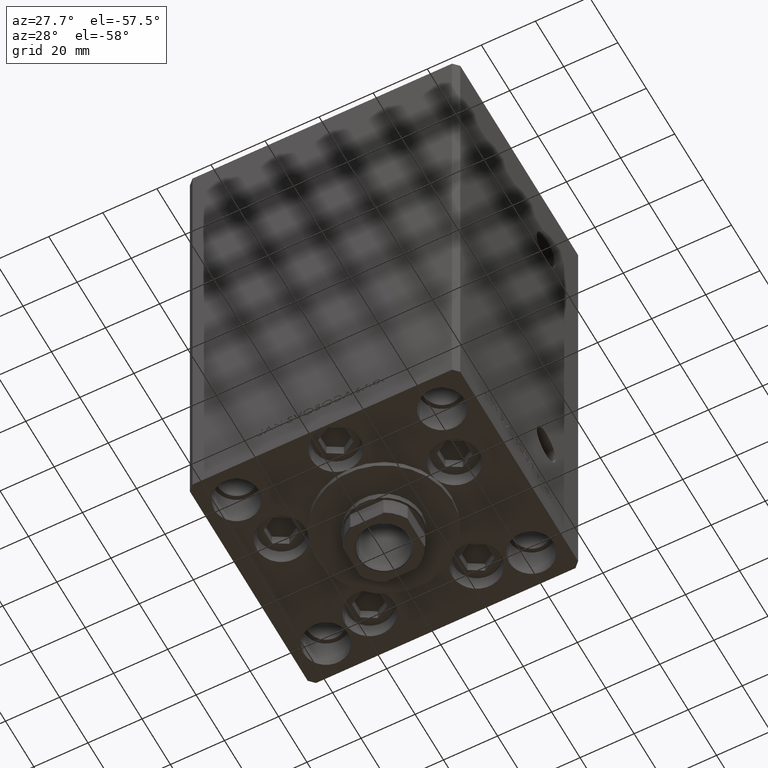
[diagram: clean part render]
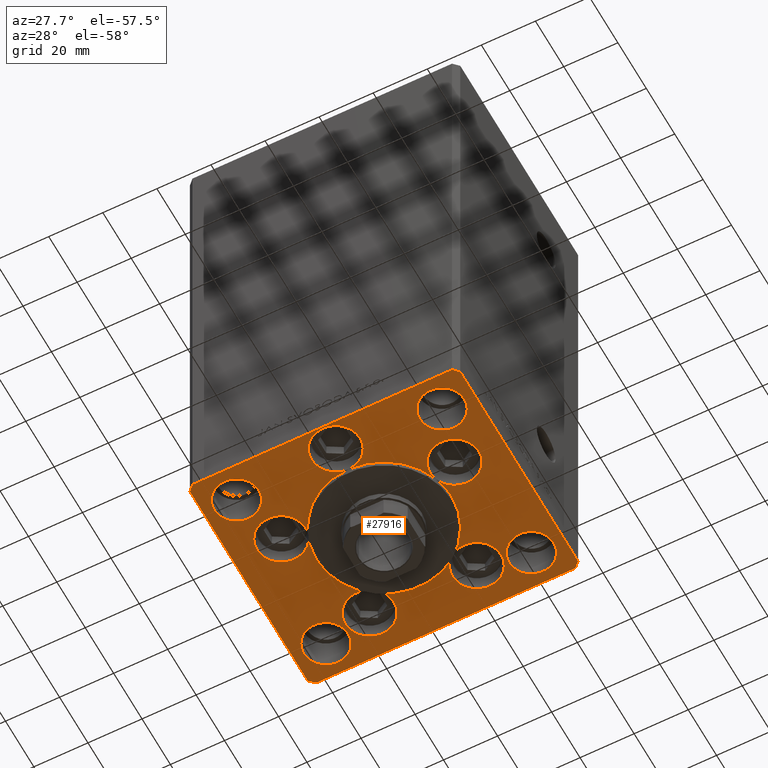
[diagram: same view with one face highlighted and labeled with its STEP entity id]
A machine part, auxiliary view. The second image highlights one B-rep face of the part: STEP entity #27916.
In plain terms, the highlighted planar face has unit normal (0, 0, -1).
Its self-contained STEP definition (entity closure, byte-faithful):
#75 = CARTESIAN_POINT ( 'NONE',  ( 47.99999999999999289, 43.50000000000000000, 0.000000000000000000 ) ) ;
#104 = ORIENTED_EDGE ( 'NONE', *, *, #5008, .F. ) ;
#226 = VERTEX_POINT ( 'NONE', #43201 ) ;
#364 = DIRECTION ( 'NONE',  ( 0.000000000000000000, 0.000000000000000000, 1.000000000000000000 ) ) ;
#482 = ORIENTED_EDGE ( 'NONE', *, *, #17138, .T. ) ;
#884 = EDGE_CURVE ( 'NONE', #41532, #47914, #15008, .T. ) ;
#889 = CARTESIAN_POINT ( 'NONE',  ( 0.000000000000000000, -6.938893903907228378E-15, 0.000000000000000000 ) ) ;
#938 = DIRECTION ( 'NONE',  ( -0.7071067811865512365, 0.7071067811865439090, 0.000000000000000000 ) ) ;
#1061 = EDGE_CURVE ( 'NONE', #16385, #7352, #23842, .T. ) ;
#1302 = CARTESIAN_POINT ( 'NONE',  ( 9.000000000000000000, -34.00000000000000000, 0.000000000000000000 ) ) ;
#1760 = CARTESIAN_POINT ( 'NONE',  ( 0.000000000000000000, -6.938893903907228378E-15, 0.000000000000000000 ) ) ;
#2022 = EDGE_LOOP ( 'NONE', ( #2719, #27828 ) ) ;
#2189 = DIRECTION ( 'NONE',  ( 0.000000000000000000, 0.000000000000000000, 1.000000000000000000 ) ) ;
#2458 = EDGE_CURVE ( 'NONE', #13599, #4754, #35096, .T. ) ;
#2632 = CIRCLE ( 'NONE', #6653, 25.00000000000000000 ) ;
#2704 = DIRECTION ( 'NONE',  ( 1.000000000000000000, 0.000000000000000000, 0.000000000000000000 ) ) ;
#2719 = ORIENTED_EDGE ( 'NONE', *, *, #10241, .F. ) ;
#2978 = EDGE_CURVE ( 'NONE', #17115, #39366, #39244, .T. ) ;
#3272 = EDGE_CURVE ( 'NONE', #39171, #33887, #7455, .T. ) ;
#3369 = EDGE_LOOP ( 'NONE', ( #3981, #37322 ) ) ;
#3731 = LINE ( 'NONE', #19784, #46924 ) ;
#3892 = DIRECTION ( 'NONE',  ( 1.000000000000000000, 0.000000000000000000, 0.000000000000000000 ) ) ;
#3981 = ORIENTED_EDGE ( 'NONE', *, *, #10288, .F. ) ;
#4004 = EDGE_CURVE ( 'NONE', #8108, #41532, #33571, .T. ) ;
#4022 = AXIS2_PLACEMENT_3D ( 'NONE', #25175, #48470, #14104 ) ;
#4073 = CARTESIAN_POINT ( 'NONE',  ( 48.00000000000000711, -43.49999999999992184, 0.000000000000000000 ) ) ;
#4263 = CARTESIAN_POINT ( 'NONE',  ( -38.00000000000000711, -31.50000000000000711, 0.000000000000000000 ) ) ;
#4321 = CIRCLE ( 'NONE', #18761, 8.250000000000000000 ) ;
#4332 = DIRECTION ( 'NONE',  ( -0.7071067811865536790, -0.7071067811865414665, 0.000000000000000000 ) ) ;
#4715 = FACE_BOUND ( 'NONE', #2022, .T. ) ;
#4754 = VERTEX_POINT ( 'NONE', #42868 ) ;
#5008 = EDGE_CURVE ( 'NONE', #6382, #8108, #48324, .T. ) ;
#5153 = AXIS2_PLACEMENT_3D ( 'NONE', #41815, #37815, #18509 ) ;
#5192 = CARTESIAN_POINT ( 'NONE',  ( -29.75000000000000000, 31.50000000000000000, 0.000000000000000000 ) ) ;
#5275 = ORIENTED_EDGE ( 'NONE', *, *, #48792, .F. ) ;
#5762 = DIRECTION ( 'NONE',  ( 1.000000000000000000, 0.000000000000000000, 0.000000000000000000 ) ) ;
#5980 = DIRECTION ( 'NONE',  ( 0.000000000000000000, 0.000000000000000000, 1.000000000000000000 ) ) ;
#6005 = AXIS2_PLACEMENT_3D ( 'NONE', #18359, #43962, #34392 ) ;
#6113 = CIRCLE ( 'NONE', #28575, 9.000000000000001776 ) ;
#6152 = DIRECTION ( 'NONE',  ( 0.000000000000000000, 0.000000000000000000, 1.000000000000000000 ) ) ;
#6274 = EDGE_CURVE ( 'NONE', #4754, #13599, #21852, .T. ) ;
#6315 = AXIS2_PLACEMENT_3D ( 'NONE', #16943, #36256, #10155 ) ;
#6338 = CARTESIAN_POINT ( 'NONE',  ( 38.00000000000000711, -31.50000000000000711, 0.000000000000000000 ) ) ;
#6382 = VERTEX_POINT ( 'NONE', #39427 ) ;
#6530 = EDGE_CURVE ( 'NONE', #6382, #9636, #9911, .T. ) ;
#6650 = AXIS2_PLACEMENT_3D ( 'NONE', #4263, #23597, #8034 ) ;
#6653 = AXIS2_PLACEMENT_3D ( 'NONE', #46762, #12408, #3892 ) ;
#6726 = EDGE_CURVE ( 'NONE', #7352, #39366, #2632, .T. ) ;
#7009 = CIRCLE ( 'NONE', #36615, 25.00000000000000000 ) ;
#7352 = VERTEX_POINT ( 'NONE', #17288 ) ;
#7455 = LINE ( 'NONE', #42298, #22437 ) ;
#7627 = ORIENTED_EDGE ( 'NONE', *, *, #10457, .F. ) ;
#7821 = AXIS2_PLACEMENT_3D ( 'NONE', #21206, #48022, #36487 ) ;
#8034 = DIRECTION ( 'NONE',  ( 1.000000000000000000, 0.000000000000000000, 0.000000000000000000 ) ) ;
#8108 = VERTEX_POINT ( 'NONE', #27385 ) ;
#8477 = FACE_BOUND ( 'NONE', #3369, .T. ) ;
#8715 = VERTEX_POINT ( 'NONE', #15217 ) ;
#8793 = AXIS2_PLACEMENT_3D ( 'NONE', #24541, #20524, #16004 ) ;
#8951 = VERTEX_POINT ( 'NONE', #17190 ) ;
#9404 = VECTOR ( 'NONE', #4332, 1000.000000000000000 ) ;
#9502 = DIRECTION ( 'NONE',  ( 1.000000000000000000, 0.000000000000000000, 0.000000000000000000 ) ) ;
#9543 = CIRCLE ( 'NONE', #43990, 8.250000000000000000 ) ;
#9636 = VERTEX_POINT ( 'NONE', #35025 ) ;
#9911 = CIRCLE ( 'NONE', #42624, 9.000000000000001776 ) ;
#9999 = EDGE_LOOP ( 'NONE', ( #25031, #12908 ) ) ;
#10155 = DIRECTION ( 'NONE',  ( 1.000000000000000000, 0.000000000000000000, 0.000000000000000000 ) ) ;
#10241 = EDGE_CURVE ( 'NONE', #8951, #226, #48395, .T. ) ;
#10274 = EDGE_LOOP ( 'NONE', ( #32628, #38568 ) ) ;
#10288 = EDGE_CURVE ( 'NONE', #12146, #10616, #4321, .T. ) ;
#10325 = VERTEX_POINT ( 'NONE', #37317 ) ;
#10457 = EDGE_CURVE ( 'NONE', #15001, #10325, #45180, .T. ) ;
#10616 = VERTEX_POINT ( 'NONE', #35032 ) ;
#10732 = EDGE_CURVE ( 'NONE', #32458, #44429, #28768, .T. ) ;
#10828 = CARTESIAN_POINT ( 'NONE',  ( -38.00000000000000000, 31.50000000000000000, 0.000000000000000000 ) ) ;
#11277 = CARTESIAN_POINT ( 'NONE',  ( -32.05550741379015989, -11.33333333333332860, 0.000000000000000000 ) ) ;
#11844 = LINE ( 'NONE', #4073, #41413 ) ;
#12146 = VERTEX_POINT ( 'NONE', #13541 ) ;
#12266 = CIRCLE ( 'NONE', #24324, 9.000000000000000000 ) ;
#12292 = ORIENTED_EDGE ( 'NONE', *, *, #21473, .T. ) ;
#12407 = CIRCLE ( 'NONE', #25242, 9.000000000000000000 ) ;
#12408 = DIRECTION ( 'NONE',  ( 0.000000000000000000, 0.000000000000000000, 1.000000000000000000 ) ) ;
#12473 = LINE ( 'NONE', #24034, #43668 ) ;
#12552 = AXIS2_PLACEMENT_3D ( 'NONE', #40517, #33735, #45272 ) ;
#12633 = CIRCLE ( 'NONE', #46162, 9.000000000000001776 ) ;
#12669 = EDGE_CURVE ( 'NONE', #46390, #7352, #21240, .T. ) ;
#12740 = CARTESIAN_POINT ( 'NONE',  ( -23.05550741379015633, -11.33333333333332860, 0.000000000000000000 ) ) ;
#12794 = CARTESIAN_POINT ( 'NONE',  ( -50.00000000000000000, -41.50000000000004263, 0.000000000000000000 ) ) ;
#12908 = ORIENTED_EDGE ( 'NONE', *, *, #2458, .F. ) ;
#13541 = CARTESIAN_POINT ( 'NONE',  ( 46.25000000000000000, 31.50000000000000000, 0.000000000000000000 ) ) ;
#13599 = VERTEX_POINT ( 'NONE', #31739 ) ;
#13688 = VERTEX_POINT ( 'NONE', #5192 ) ;
#14051 = DIRECTION ( 'NONE',  ( 1.000000000000000000, 0.000000000000000000, 0.000000000000000000 ) ) ;
#14104 = DIRECTION ( 'NONE',  ( 1.000000000000000000, 0.000000000000000000, 0.000000000000000000 ) ) ;
#14105 = DIRECTION ( 'NONE',  ( 0.000000000000000000, 0.000000000000000000, 1.000000000000000000 ) ) ;
#14335 = CIRCLE ( 'NONE', #6315, 8.999999999999998224 ) ;
#14650 = VERTEX_POINT ( 'NONE', #48760 ) ;
#14744 = VERTEX_POINT ( 'NONE', #35188 ) ;
#14946 = ORIENTED_EDGE ( 'NONE', *, *, #21578, .F. ) ;
#15001 = VERTEX_POINT ( 'NONE', #18594 ) ;
#15008 = CIRCLE ( 'NONE', #35054, 25.00000000000000000 ) ;
#15058 = DIRECTION ( 'NONE',  ( 1.000000000000000000, 0.000000000000000000, 0.000000000000000000 ) ) ;
#15142 = EDGE_LOOP ( 'NONE', ( #29163, #27894, #482, #42613, #23931, #27339, #12292, #26647 ) ) ;
#15217 = CARTESIAN_POINT ( 'NONE',  ( 47.99999999999999289, 43.50000000000000000, 0.000000000000000000 ) ) ;
#15361 = CARTESIAN_POINT ( 'NONE',  ( 38.00000000000000711, -31.50000000000000711, 0.000000000000000000 ) ) ;
#15820 = EDGE_CURVE ( 'NONE', #13688, #41670, #32577, .T. ) ;
#15978 = DIRECTION ( 'NONE',  ( 0.000000000000000000, 0.000000000000000000, 1.000000000000000000 ) ) ;
#16004 = DIRECTION ( 'NONE',  ( 1.000000000000000000, 0.000000000000000000, 0.000000000000000000 ) ) ;
#16186 = DIRECTION ( 'NONE',  ( 0.000000000000000000, 0.000000000000000000, 1.000000000000000000 ) ) ;
#16252 = FACE_BOUND ( 'NONE', #35153, .T. ) ;
#16338 = ORIENTED_EDGE ( 'NONE', *, *, #48624, .F. ) ;
#16360 = AXIS2_PLACEMENT_3D ( 'NONE', #32086, #23149, #38432 ) ;
#16385 = VERTEX_POINT ( 'NONE', #42669 ) ;
#16429 = CARTESIAN_POINT ( 'NONE',  ( -28.82068048781374969, 27.62499999999998934, 0.000000000000000000 ) ) ;
#16497 = FACE_OUTER_BOUND ( 'NONE', #15142, .T. ) ;
#16866 = DIRECTION ( 'NONE',  ( 0.000000000000000000, 0.000000000000000000, 1.000000000000000000 ) ) ;
#16943 = CARTESIAN_POINT ( 'NONE',  ( 19.82068048781374969, 27.62499999999998934, 0.000000000000000000 ) ) ;
#17115 = VERTEX_POINT ( 'NONE', #1302 ) ;
#17138 = EDGE_CURVE ( 'NONE', #33887, #22483, #11844, .T. ) ;
#17190 = CARTESIAN_POINT ( 'NONE',  ( -29.75000000000000711, -31.50000000000000711, 0.000000000000000000 ) ) ;
#17283 = CARTESIAN_POINT ( 'NONE',  ( 14.57402977045128623, 20.31249999999998579, 0.000000000000000000 ) ) ;
#17288 = CARTESIAN_POINT ( 'NONE',  ( -23.57022603955158502, -8.333333333333332149, 0.000000000000000000 ) ) ;
#17322 = CARTESIAN_POINT ( 'NONE',  ( 48.00000000000000711, -43.49999999999992184, 0.000000000000000000 ) ) ;
#17520 = EDGE_CURVE ( 'NONE', #22483, #23120, #27109, .T. ) ;
#17543 = CARTESIAN_POINT ( 'NONE',  ( -50.00000000000000711, 41.49999999999999289, 0.000000000000000000 ) ) ;
#17912 = DIRECTION ( 'NONE',  ( 1.000000000000000000, 0.000000000000000000, 0.000000000000000000 ) ) ;
#18137 = CIRCLE ( 'NONE', #30956, 9.000000000000000000 ) ;
#18179 = DIRECTION ( 'NONE',  ( 1.000000000000000000, 0.000000000000000000, 0.000000000000000000 ) ) ;
#18359 = CARTESIAN_POINT ( 'NONE',  ( -32.05550741379015989, -11.33333333333332860, 0.000000000000000000 ) ) ;
#18509 = DIRECTION ( 'NONE',  ( 1.000000000000000000, 0.000000000000000000, 0.000000000000000000 ) ) ;
#18547 = ORIENTED_EDGE ( 'NONE', *, *, #36570, .F. ) ;
#18594 = CARTESIAN_POINT ( 'NONE',  ( 28.82068048781374969, 27.62499999999998934, 0.000000000000000000 ) ) ;
#18605 = DIRECTION ( 'NONE',  ( 1.000000000000000000, 0.000000000000000000, 0.000000000000000000 ) ) ;
#18644 = ORIENTED_EDGE ( 'NONE', *, *, #45158, .F. ) ;
#18682 = CIRCLE ( 'NONE', #46707, 25.00000000000000000 ) ;
#18761 = AXIS2_PLACEMENT_3D ( 'NONE', #21551, #25309, #2704 ) ;
#18837 = VERTEX_POINT ( 'NONE', #45754 ) ;
#18892 = LINE ( 'NONE', #75, #20632 ) ;
#19295 = EDGE_CURVE ( 'NONE', #9636, #14650, #12633, .T. ) ;
#19318 = DIRECTION ( 'NONE',  ( 0.000000000000000000, 0.000000000000000000, 1.000000000000000000 ) ) ;
#19375 = DIRECTION ( 'NONE',  ( 0.7071067811865474617, 0.7071067811865474617, 0.000000000000000000 ) ) ;
#19387 = CARTESIAN_POINT ( 'NONE',  ( -48.00000000000000000, 43.49999999999997158, 0.000000000000000000 ) ) ;
#19667 = CARTESIAN_POINT ( 'NONE',  ( 32.05550741379015989, -11.33333333333332860, 0.000000000000000000 ) ) ;
#19777 = PLANE ( 'NONE',  #8793 ) ;
#19784 = CARTESIAN_POINT ( 'NONE',  ( -50.00000000000000000, -41.50000000000004263, 0.000000000000000000 ) ) ;
#20395 = CARTESIAN_POINT ( 'NONE',  ( 0.000000000000000000, -6.938893903907228378E-15, 0.000000000000000000 ) ) ;
#20524 = DIRECTION ( 'NONE',  ( -0.000000000000000000, 0.000000000000000000, 1.000000000000000000 ) ) ;
#20632 = VECTOR ( 'NONE', #35175, 1000.000000000000000 ) ;
#20725 = EDGE_CURVE ( 'NONE', #8715, #47531, #18892, .T. ) ;
#20819 = AXIS2_PLACEMENT_3D ( 'NONE', #49409, #42357, #26844 ) ;
#21134 = DIRECTION ( 'NONE',  ( 1.000000000000000000, 0.000000000000000000, 0.000000000000000000 ) ) ;
#21206 = CARTESIAN_POINT ( 'NONE',  ( 0.000000000000000000, -6.938893903907228378E-15, 0.000000000000000000 ) ) ;
#21240 = CIRCLE ( 'NONE', #6005, 9.000000000000001776 ) ;
#21473 = EDGE_CURVE ( 'NONE', #47531, #32458, #31176, .T. ) ;
#21551 = CARTESIAN_POINT ( 'NONE',  ( 38.00000000000000000, 31.50000000000000000, 0.000000000000000000 ) ) ;
#21578 = EDGE_CURVE ( 'NONE', #47914, #16385, #7009, .T. ) ;
#21852 = CIRCLE ( 'NONE', #28264, 8.249999999999992895 ) ;
#22437 = VECTOR ( 'NONE', #34045, 1000.000000000000000 ) ;
#22483 = VERTEX_POINT ( 'NONE', #44639 ) ;
#22680 = CIRCLE ( 'NONE', #6650, 8.250000000000000000 ) ;
#22759 = VERTEX_POINT ( 'NONE', #35077 ) ;
#22779 = DIRECTION ( 'NONE',  ( 0.000000000000000000, 0.000000000000000000, 1.000000000000000000 ) ) ;
#22952 = AXIS2_PLACEMENT_3D ( 'NONE', #23260, #22779, #30302 ) ;
#23120 = VERTEX_POINT ( 'NONE', #33477 ) ;
#23149 = DIRECTION ( 'NONE',  ( 0.000000000000000000, 0.000000000000000000, 1.000000000000000000 ) ) ;
#23197 = AXIS2_PLACEMENT_3D ( 'NONE', #11277, #48669, #14051 ) ;
#23260 = CARTESIAN_POINT ( 'NONE',  ( -19.82068048781374969, 27.62499999999998934, 0.000000000000000000 ) ) ;
#23323 = CARTESIAN_POINT ( 'NONE',  ( 38.00000000000000000, 31.50000000000000000, 0.000000000000000000 ) ) ;
#23597 = DIRECTION ( 'NONE',  ( 0.000000000000000000, 0.000000000000000000, 1.000000000000000000 ) ) ;
#23842 = CIRCLE ( 'NONE', #7821, 25.00000000000000000 ) ;
#23931 = ORIENTED_EDGE ( 'NONE', *, *, #44816, .T. ) ;
#24034 = CARTESIAN_POINT ( 'NONE',  ( 50.00000000000000000, 41.50000000000000711, 0.000000000000000000 ) ) ;
#24158 = ORIENTED_EDGE ( 'NONE', *, *, #33665, .F. ) ;
#24324 = AXIS2_PLACEMENT_3D ( 'NONE', #40426, #16866, #32166 ) ;
#24444 = DIRECTION ( 'NONE',  ( 0.000000000000000000, 0.000000000000000000, 1.000000000000000000 ) ) ;
#24541 = CARTESIAN_POINT ( 'NONE',  ( 0.000000000000000000, 0.000000000000000000, 0.000000000000000000 ) ) ;
#24694 = DIRECTION ( 'NONE',  ( 1.000000000000000000, 0.000000000000000000, 0.000000000000000000 ) ) ;
#25031 = ORIENTED_EDGE ( 'NONE', *, *, #6274, .F. ) ;
#25115 = AXIS2_PLACEMENT_3D ( 'NONE', #45832, #15978, #26553 ) ;
#25175 = CARTESIAN_POINT ( 'NONE',  ( -38.00000000000000000, 31.50000000000000000, 0.000000000000000000 ) ) ;
#25242 = AXIS2_PLACEMENT_3D ( 'NONE', #39008, #46516, #47273 ) ;
#25261 = EDGE_CURVE ( 'NONE', #10325, #41532, #14335, .T. ) ;
#25309 = DIRECTION ( 'NONE',  ( 0.000000000000000000, 0.000000000000000000, 1.000000000000000000 ) ) ;
#25406 = DIRECTION ( 'NONE',  ( 0.000000000000000000, 0.000000000000000000, 1.000000000000000000 ) ) ;
#25408 = ORIENTED_EDGE ( 'NONE', *, *, #884, .F. ) ;
#25486 = AXIS2_PLACEMENT_3D ( 'NONE', #6338, #14105, #49224 ) ;
#25732 = CARTESIAN_POINT ( 'NONE',  ( -14.57402977045128978, 20.31249999999999289, 0.000000000000000000 ) ) ;
#26071 = ORIENTED_EDGE ( 'NONE', *, *, #36381, .F. ) ;
#26102 = EDGE_CURVE ( 'NONE', #10616, #12146, #9543, .T. ) ;
#26321 = CARTESIAN_POINT ( 'NONE',  ( -46.25000000000000000, 31.50000000000000000, 0.000000000000000000 ) ) ;
#26553 = DIRECTION ( 'NONE',  ( 1.000000000000000000, 0.000000000000000000, 0.000000000000000000 ) ) ;
#26647 = ORIENTED_EDGE ( 'NONE', *, *, #10732, .T. ) ;
#26729 = EDGE_CURVE ( 'NONE', #14744, #46390, #30431, .T. ) ;
#26844 = DIRECTION ( 'NONE',  ( 1.000000000000000000, 0.000000000000000000, 0.000000000000000000 ) ) ;
#27109 = LINE ( 'NONE', #34845, #42197 ) ;
#27339 = ORIENTED_EDGE ( 'NONE', *, *, #20725, .T. ) ;
#27385 = CARTESIAN_POINT ( 'NONE',  ( 25.00000000000000000, -3.877276906038844941E-15, 0.000000000000000000 ) ) ;
#27828 = ORIENTED_EDGE ( 'NONE', *, *, #35652, .F. ) ;
#27894 = ORIENTED_EDGE ( 'NONE', *, *, #3272, .T. ) ;
#27916 = ADVANCED_FACE ( 'NONE', ( #16252, #8477, #47346, #4715, #43580, #16497 ), #19777, .T. ) ;
#28225 = CIRCLE ( 'NONE', #33792, 8.999999999999998224 ) ;
#28264 = AXIS2_PLACEMENT_3D ( 'NONE', #15361, #34911, #42196 ) ;
#28575 = AXIS2_PLACEMENT_3D ( 'NONE', #19667, #24444, #24694 ) ;
#28768 = LINE ( 'NONE', #44042, #36372 ) ;
#29035 = CARTESIAN_POINT ( 'NONE',  ( -32.05550741379015989, -11.33333333333332860, 0.000000000000000000 ) ) ;
#29163 = ORIENTED_EDGE ( 'NONE', *, *, #46929, .T. ) ;
#29184 = CARTESIAN_POINT ( 'NONE',  ( 19.82068048781374969, 27.62499999999998934, 0.000000000000000000 ) ) ;
#29258 = EDGE_CURVE ( 'NONE', #41670, #13688, #42469, .T. ) ;
#30302 = DIRECTION ( 'NONE',  ( 1.000000000000000000, 0.000000000000000000, 0.000000000000000000 ) ) ;
#30431 = CIRCLE ( 'NONE', #23197, 9.000000000000001776 ) ;
#30798 = ORIENTED_EDGE ( 'NONE', *, *, #26729, .F. ) ;
#30956 = AXIS2_PLACEMENT_3D ( 'NONE', #36505, #6152, #18179 ) ;
#31065 = ORIENTED_EDGE ( 'NONE', *, *, #46274, .F. ) ;
#31176 = LINE ( 'NONE', #19387, #9404 ) ;
#31391 = CARTESIAN_POINT ( 'NONE',  ( 0.000000000000000000, -25.00000000000000000, 0.000000000000000000 ) ) ;
#31685 = AXIS2_PLACEMENT_3D ( 'NONE', #29035, #2189, #48081 ) ;
#31739 = CARTESIAN_POINT ( 'NONE',  ( 29.75000000000001066, -31.50000000000000711, 0.000000000000000000 ) ) ;
#32086 = CARTESIAN_POINT ( 'NONE',  ( -38.00000000000000711, -31.50000000000000711, 0.000000000000000000 ) ) ;
#32166 = DIRECTION ( 'NONE',  ( 1.000000000000000000, 0.000000000000000000, 0.000000000000000000 ) ) ;
#32458 = VERTEX_POINT ( 'NONE', #17543 ) ;
#32577 = CIRCLE ( 'NONE', #41381, 8.250000000000000000 ) ;
#32628 = ORIENTED_EDGE ( 'NONE', *, *, #15820, .F. ) ;
#33128 = ORIENTED_EDGE ( 'NONE', *, *, #4004, .F. ) ;
#33477 = CARTESIAN_POINT ( 'NONE',  ( 50.00000000000000000, 41.50000000000000711, 0.000000000000000000 ) ) ;
#33571 = CIRCLE ( 'NONE', #39991, 25.00000000000000000 ) ;
#33665 = EDGE_CURVE ( 'NONE', #41532, #15001, #28225, .T. ) ;
#33735 = DIRECTION ( 'NONE',  ( 0.000000000000000000, 0.000000000000000000, 1.000000000000000000 ) ) ;
#33792 = AXIS2_PLACEMENT_3D ( 'NONE', #29184, #44467, #40706 ) ;
#33873 = CARTESIAN_POINT ( 'NONE',  ( 32.05550741379015989, -11.33333333333332860, 0.000000000000000000 ) ) ;
#33887 = VERTEX_POINT ( 'NONE', #17322 ) ;
#34045 = DIRECTION ( 'NONE',  ( 1.000000000000000000, 1.156482317317871331E-15, 0.000000000000000000 ) ) ;
#34392 = DIRECTION ( 'NONE',  ( 1.000000000000000000, 0.000000000000000000, 0.000000000000000000 ) ) ;
#34845 = CARTESIAN_POINT ( 'NONE',  ( 50.00000000000000000, -41.49999999999992895, 0.000000000000000000 ) ) ;
#34911 = DIRECTION ( 'NONE',  ( 0.000000000000000000, 0.000000000000000000, 1.000000000000000000 ) ) ;
#35025 = CARTESIAN_POINT ( 'NONE',  ( 23.05550741379015633, -11.33333333333332682, 0.000000000000000000 ) ) ;
#35032 = CARTESIAN_POINT ( 'NONE',  ( 29.74999999999999645, 31.50000000000000000, 0.000000000000000000 ) ) ;
#35054 = AXIS2_PLACEMENT_3D ( 'NONE', #889, #16186, #17912 ) ;
#35071 = DIRECTION ( 'NONE',  ( 0.7071067811865487940, -0.7071067811865463515, 0.000000000000000000 ) ) ;
#35077 = CARTESIAN_POINT ( 'NONE',  ( -10.82068048781375147, 27.62499999999998934, 0.000000000000000000 ) ) ;
#35096 = CIRCLE ( 'NONE', #25486, 8.249999999999992895 ) ;
#35153 = EDGE_LOOP ( 'NONE', ( #25408, #40679, #7627, #24158, #33128, #104, #46327, #48397, #47635, #18547, #40939, #18644, #45299, #37345, #37708, #30798, #31065, #38574, #14946, #16338, #5275, #26071 ) ) ;
#35175 = DIRECTION ( 'NONE',  ( -1.000000000000000000, -2.891205793294678326E-16, 0.000000000000000000 ) ) ;
#35188 = CARTESIAN_POINT ( 'NONE',  ( -41.05550741379015989, -11.33333333333332682, 0.000000000000000000 ) ) ;
#35454 = DIRECTION ( 'NONE',  ( 8.360113137237620037E-17, -1.000000000000000000, 0.000000000000000000 ) ) ;
#35652 = EDGE_CURVE ( 'NONE', #226, #8951, #22680, .T. ) ;
#36256 = DIRECTION ( 'NONE',  ( 0.000000000000000000, 0.000000000000000000, 1.000000000000000000 ) ) ;
#36372 = VECTOR ( 'NONE', #35454, 1000.000000000000000 ) ;
#36381 = EDGE_CURVE ( 'NONE', #47914, #22759, #12266, .T. ) ;
#36487 = DIRECTION ( 'NONE',  ( 1.000000000000000000, 0.000000000000000000, 0.000000000000000000 ) ) ;
#36505 = CARTESIAN_POINT ( 'NONE',  ( 0.000000000000000000, -34.00000000000000000, 0.000000000000000000 ) ) ;
#36570 = EDGE_CURVE ( 'NONE', #39366, #6382, #18682, .T. ) ;
#36615 = AXIS2_PLACEMENT_3D ( 'NONE', #20395, #40179, #21134 ) ;
#37317 = CARTESIAN_POINT ( 'NONE',  ( 10.82068048781375147, 27.62499999999998934, 0.000000000000000000 ) ) ;
#37322 = ORIENTED_EDGE ( 'NONE', *, *, #26102, .F. ) ;
#37345 = ORIENTED_EDGE ( 'NONE', *, *, #6726, .F. ) ;
#37708 = ORIENTED_EDGE ( 'NONE', *, *, #12669, .F. ) ;
#37815 = DIRECTION ( 'NONE',  ( 0.000000000000000000, 0.000000000000000000, 1.000000000000000000 ) ) ;
#38187 = CIRCLE ( 'NONE', #12552, 9.000000000000000000 ) ;
#38432 = DIRECTION ( 'NONE',  ( 1.000000000000000000, 0.000000000000000000, 0.000000000000000000 ) ) ;
#38568 = ORIENTED_EDGE ( 'NONE', *, *, #29258, .F. ) ;
#38574 = ORIENTED_EDGE ( 'NONE', *, *, #1061, .F. ) ;
#38604 = DIRECTION ( 'NONE',  ( 1.000000000000000000, 0.000000000000000000, 0.000000000000000000 ) ) ;
#38738 = DIRECTION ( 'NONE',  ( 1.000000000000000000, 0.000000000000000000, 0.000000000000000000 ) ) ;
#39008 = CARTESIAN_POINT ( 'NONE',  ( 0.000000000000000000, -34.00000000000000000, 0.000000000000000000 ) ) ;
#39171 = VERTEX_POINT ( 'NONE', #39776 ) ;
#39244 = CIRCLE ( 'NONE', #20819, 9.000000000000000000 ) ;
#39366 = VERTEX_POINT ( 'NONE', #31391 ) ;
#39427 = CARTESIAN_POINT ( 'NONE',  ( 23.57022603955158502, -8.333333333333332149, 0.000000000000000000 ) ) ;
#39776 = CARTESIAN_POINT ( 'NONE',  ( -48.00000000000000711, -43.50000000000002842, 0.000000000000000000 ) ) ;
#39862 = CARTESIAN_POINT ( 'NONE',  ( 0.000000000000000000, -6.938893903907228378E-15, 0.000000000000000000 ) ) ;
#39991 = AXIS2_PLACEMENT_3D ( 'NONE', #39862, #5980, #9502 ) ;
#40128 = DIRECTION ( 'NONE',  ( 0.000000000000000000, 0.000000000000000000, 1.000000000000000000 ) ) ;
#40179 = DIRECTION ( 'NONE',  ( 0.000000000000000000, 0.000000000000000000, 1.000000000000000000 ) ) ;
#40426 = CARTESIAN_POINT ( 'NONE',  ( -19.82068048781374969, 27.62499999999998934, 0.000000000000000000 ) ) ;
#40517 = CARTESIAN_POINT ( 'NONE',  ( -19.82068048781374969, 27.62499999999998934, 0.000000000000000000 ) ) ;
#40679 = ORIENTED_EDGE ( 'NONE', *, *, #25261, .F. ) ;
#40706 = DIRECTION ( 'NONE',  ( 1.000000000000000000, 0.000000000000000000, 0.000000000000000000 ) ) ;
#40939 = ORIENTED_EDGE ( 'NONE', *, *, #2978, .F. ) ;
#41336 = CIRCLE ( 'NONE', #22952, 9.000000000000000000 ) ;
#41381 = AXIS2_PLACEMENT_3D ( 'NONE', #10828, #25406, #18605 ) ;
#41413 = VECTOR ( 'NONE', #19375, 1000.000000000000114 ) ;
#41532 = VERTEX_POINT ( 'NONE', #17283 ) ;
#41670 = VERTEX_POINT ( 'NONE', #26321 ) ;
#41815 = CARTESIAN_POINT ( 'NONE',  ( 19.82068048781374969, 27.62499999999998934, 0.000000000000000000 ) ) ;
#42196 = DIRECTION ( 'NONE',  ( 1.000000000000000000, 0.000000000000000000, 0.000000000000000000 ) ) ;
#42197 = VECTOR ( 'NONE', #42372, 1000.000000000000000 ) ;
#42298 = CARTESIAN_POINT ( 'NONE',  ( -48.00000000000000711, -43.50000000000002842, 0.000000000000000000 ) ) ;
#42357 = DIRECTION ( 'NONE',  ( 0.000000000000000000, 0.000000000000000000, 1.000000000000000000 ) ) ;
#42360 = DIRECTION ( 'NONE',  ( 0.000000000000000000, 0.000000000000000000, 1.000000000000000000 ) ) ;
#42372 = DIRECTION ( 'NONE',  ( 0.000000000000000000, 1.000000000000000000, 0.000000000000000000 ) ) ;
#42469 = CIRCLE ( 'NONE', #4022, 8.250000000000000000 ) ;
#42613 = ORIENTED_EDGE ( 'NONE', *, *, #17520, .T. ) ;
#42624 = AXIS2_PLACEMENT_3D ( 'NONE', #33873, #19318, #15058 ) ;
#42669 = CARTESIAN_POINT ( 'NONE',  ( -25.00000000000000000, -6.938893903907228378E-15, 0.000000000000000000 ) ) ;
#42868 = CARTESIAN_POINT ( 'NONE',  ( 46.25000000000000000, -31.50000000000000711, 0.000000000000000000 ) ) ;
#43201 = CARTESIAN_POINT ( 'NONE',  ( -46.25000000000000711, -31.50000000000000711, 0.000000000000000000 ) ) ;
#43580 = FACE_BOUND ( 'NONE', #9999, .T. ) ;
#43668 = VECTOR ( 'NONE', #938, 999.9999999999998863 ) ;
#43962 = DIRECTION ( 'NONE',  ( 0.000000000000000000, 0.000000000000000000, 1.000000000000000000 ) ) ;
#43990 = AXIS2_PLACEMENT_3D ( 'NONE', #23323, #42360, #38604 ) ;
#44042 = CARTESIAN_POINT ( 'NONE',  ( -50.00000000000000711, 41.49999999999999289, 0.000000000000000000 ) ) ;
#44429 = VERTEX_POINT ( 'NONE', #12794 ) ;
#44467 = DIRECTION ( 'NONE',  ( 0.000000000000000000, 0.000000000000000000, 1.000000000000000000 ) ) ;
#44639 = CARTESIAN_POINT ( 'NONE',  ( 50.00000000000000000, -41.49999999999992895, 0.000000000000000000 ) ) ;
#44816 = EDGE_CURVE ( 'NONE', #23120, #8715, #12473, .T. ) ;
#45153 = VERTEX_POINT ( 'NONE', #16429 ) ;
#45158 = EDGE_CURVE ( 'NONE', #18837, #17115, #12407, .T. ) ;
#45180 = CIRCLE ( 'NONE', #5153, 8.999999999999998224 ) ;
#45272 = DIRECTION ( 'NONE',  ( 1.000000000000000000, 0.000000000000000000, 0.000000000000000000 ) ) ;
#45299 = ORIENTED_EDGE ( 'NONE', *, *, #47941, .F. ) ;
#45754 = CARTESIAN_POINT ( 'NONE',  ( -9.000000000000000000, -34.00000000000000000, 0.000000000000000000 ) ) ;
#45761 = CARTESIAN_POINT ( 'NONE',  ( 32.05550741379015989, -11.33333333333332860, 0.000000000000000000 ) ) ;
#45832 = CARTESIAN_POINT ( 'NONE',  ( 0.000000000000000000, -6.938893903907228378E-15, 0.000000000000000000 ) ) ;
#46088 = CIRCLE ( 'NONE', #31685, 9.000000000000001776 ) ;
#46162 = AXIS2_PLACEMENT_3D ( 'NONE', #45761, #364, #38738 ) ;
#46274 = EDGE_CURVE ( 'NONE', #7352, #14744, #46088, .T. ) ;
#46327 = ORIENTED_EDGE ( 'NONE', *, *, #48215, .F. ) ;
#46390 = VERTEX_POINT ( 'NONE', #12740 ) ;
#46516 = DIRECTION ( 'NONE',  ( 0.000000000000000000, 0.000000000000000000, 1.000000000000000000 ) ) ;
#46707 = AXIS2_PLACEMENT_3D ( 'NONE', #1760, #40128, #5762 ) ;
#46762 = CARTESIAN_POINT ( 'NONE',  ( 0.000000000000000000, -6.938893903907228378E-15, 0.000000000000000000 ) ) ;
#46924 = VECTOR ( 'NONE', #35071, 1000.000000000000000 ) ;
#46929 = EDGE_CURVE ( 'NONE', #44429, #39171, #3731, .T. ) ;
#47177 = CARTESIAN_POINT ( 'NONE',  ( -48.00000000000000000, 43.49999999999997158, 0.000000000000000000 ) ) ;
#47273 = DIRECTION ( 'NONE',  ( 1.000000000000000000, 0.000000000000000000, 0.000000000000000000 ) ) ;
#47346 = FACE_BOUND ( 'NONE', #10274, .T. ) ;
#47531 = VERTEX_POINT ( 'NONE', #47177 ) ;
#47635 = ORIENTED_EDGE ( 'NONE', *, *, #6530, .F. ) ;
#47914 = VERTEX_POINT ( 'NONE', #25732 ) ;
#47941 = EDGE_CURVE ( 'NONE', #39366, #18837, #18137, .T. ) ;
#48022 = DIRECTION ( 'NONE',  ( 0.000000000000000000, 0.000000000000000000, 1.000000000000000000 ) ) ;
#48081 = DIRECTION ( 'NONE',  ( 1.000000000000000000, 0.000000000000000000, 0.000000000000000000 ) ) ;
#48215 = EDGE_CURVE ( 'NONE', #14650, #6382, #6113, .T. ) ;
#48324 = CIRCLE ( 'NONE', #25115, 25.00000000000000000 ) ;
#48395 = CIRCLE ( 'NONE', #16360, 8.250000000000000000 ) ;
#48397 = ORIENTED_EDGE ( 'NONE', *, *, #19295, .F. ) ;
#48470 = DIRECTION ( 'NONE',  ( 0.000000000000000000, 0.000000000000000000, 1.000000000000000000 ) ) ;
#48624 = EDGE_CURVE ( 'NONE', #45153, #47914, #41336, .T. ) ;
#48669 = DIRECTION ( 'NONE',  ( 0.000000000000000000, 0.000000000000000000, 1.000000000000000000 ) ) ;
#48760 = CARTESIAN_POINT ( 'NONE',  ( 41.05550741379015989, -11.33333333333332860, 0.000000000000000000 ) ) ;
#48792 = EDGE_CURVE ( 'NONE', #22759, #45153, #38187, .T. ) ;
#49224 = DIRECTION ( 'NONE',  ( 1.000000000000000000, 0.000000000000000000, 0.000000000000000000 ) ) ;
#49409 = CARTESIAN_POINT ( 'NONE',  ( 0.000000000000000000, -34.00000000000000000, 0.000000000000000000 ) ) ;